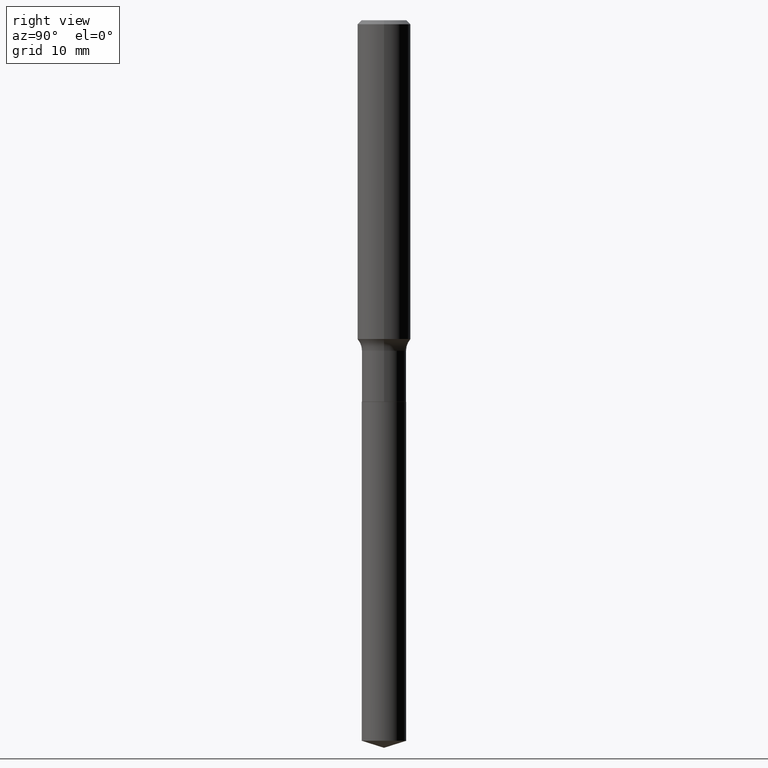
[diagram: clean part render]
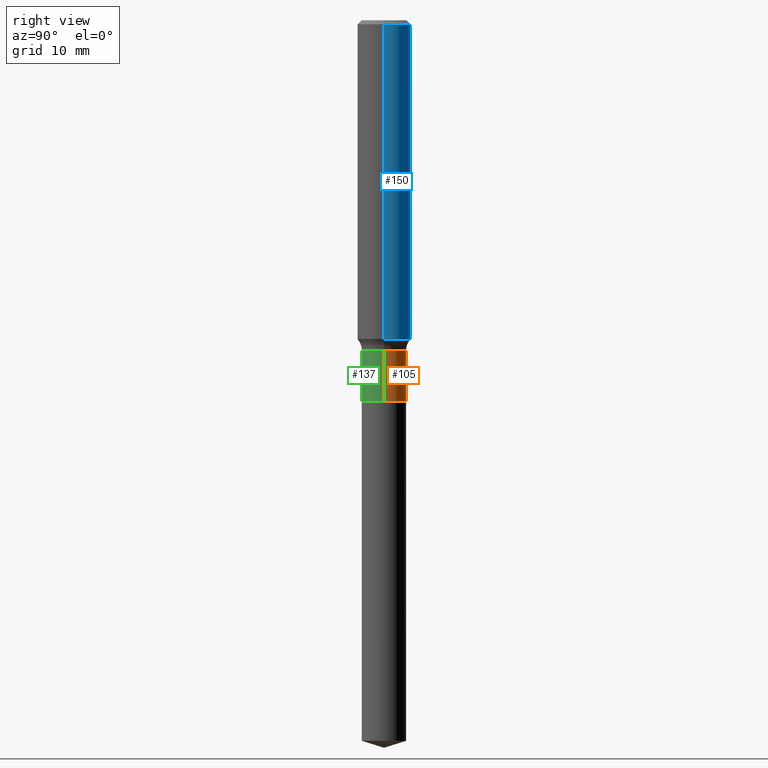
[diagram: same view with three faces highlighted in distinct colors, each labeled with its STEP entity id]
A machine part, right view with three faces highlighted in distinct colors.
Their STEP definitions:

[orange] entity #105 — the highlighted cylindrical surface (edge-blend (fillet) strip) has radius 2.5006 mm, axis along (-0, 0, 1).
#10 = VERTEX_POINT ( 'NONE', #50 ) ;
#19 = DIRECTION ( 'NONE',  ( -2.445468806185136877E-29, 3.491481338843145188E-15, 1.000000000000000000 ) ) ;
#24 = EDGE_CURVE ( 'NONE', #407, #276, #267, .T. ) ;
#33 = CARTESIAN_POINT ( 'NONE',  ( -0.09844999999999995421, -4.815090877279988422E-15, -1.466500000000000137 ) ) ;
#44 = VECTOR ( 'NONE', #75, 39.37007874015748143 ) ;
#50 = CARTESIAN_POINT ( 'NONE',  ( -0.09844999999999999585, -4.815090877279988422E-15, -1.692400000000000126 ) ) ;
#53 = CARTESIAN_POINT ( 'NONE',  ( 0.09844999999999998197, -6.874726756182128559E-16, 4.800596035771097813E-30 ) ) ;
#64 = CARTESIAN_POINT ( 'NONE',  ( 0.09844999999999999585, -6.596455693476352920E-15, -1.692400000000000126 ) ) ;
#75 = DIRECTION ( 'NONE',  ( -2.445468806185136877E-29, 3.491481338843145188E-15, 1.000000000000000000 ) ) ;
#102 = ORIENTED_EDGE ( 'NONE', *, *, #24, .F. ) ;
#105 = ADVANCED_FACE ( 'NONE', ( #110 ), #338, .T. ) ;
#110 = FACE_OUTER_BOUND ( 'NONE', #357, .T. ) ;
#124 = AXIS2_PLACEMENT_3D ( 'NONE', #468, #274, #221 ) ;
#127 = CARTESIAN_POINT ( 'NONE',  ( 4.138711407587726116E-29, -5.908983017858140360E-15, -1.692400000000000126 ) ) ;
#128 = VERTEX_POINT ( 'NONE', #64 ) ;
#161 = ORIENTED_EDGE ( 'NONE', *, *, #336, .T. ) ;
#221 = DIRECTION ( 'NONE',  ( 1.000000000000000000, -6.982962677686266711E-15, 4.876176775795935793E-29 ) ) ;
#242 = ORIENTED_EDGE ( 'NONE', *, *, #456, .F. ) ;
#259 = AXIS2_PLACEMENT_3D ( 'NONE', #127, #353, #474 ) ;
#267 = CIRCLE ( 'NONE', #490, 0.09844999999999995421 ) ;
#272 = EDGE_CURVE ( 'NONE', #10, #276, #467, .T. ) ;
#274 = DIRECTION ( 'NONE',  ( -2.445468806185136597E-29, 3.491481338843145583E-15, 1.000000000000000000 ) ) ;
#276 = VERTEX_POINT ( 'NONE', #33 ) ;
#297 = CARTESIAN_POINT ( 'NONE',  ( 3.586280004270503451E-29, -5.120257383413473493E-15, -1.466500000000000137 ) ) ;
#304 = DIRECTION ( 'NONE',  ( 1.000000000000000000, -6.982962677686269077E-15, 0.000000000000000000 ) ) ;
#334 = ORIENTED_EDGE ( 'NONE', *, *, #272, .T. ) ;
#336 = EDGE_CURVE ( 'NONE', #128, #10, #473, .T. ) ;
#338 = CYLINDRICAL_SURFACE ( 'NONE', #124, 0.09844999999999998197 ) ;
#353 = DIRECTION ( 'NONE',  ( -2.445468806185136597E-29, 3.491481338843145583E-15, 1.000000000000000000 ) ) ;
#357 = EDGE_LOOP ( 'NONE', ( #161, #334, #102, #242 ) ) ;
#403 = LINE ( 'NONE', #53, #446 ) ;
#407 = VERTEX_POINT ( 'NONE', #408 ) ;
#408 = CARTESIAN_POINT ( 'NONE',  ( 0.09844999999999995421, -5.807730059031686053E-15, -1.466500000000000137 ) ) ;
#420 = DIRECTION ( 'NONE',  ( -2.445468806185136597E-29, 3.491481338843145583E-15, 1.000000000000000000 ) ) ;
#446 = VECTOR ( 'NONE', #19, 39.37007874015748143 ) ;
#456 = EDGE_CURVE ( 'NONE', #128, #407, #403, .T. ) ;
#467 = LINE ( 'NONE', #492, #44 ) ;
#468 = CARTESIAN_POINT ( 'NONE',  ( 0.000000000000000000, 0.000000000000000000, 0.000000000000000000 ) ) ;
#473 = CIRCLE ( 'NONE', #259, 0.09844999999999999585 ) ;
#474 = DIRECTION ( 'NONE',  ( 1.000000000000000000, -6.982962677686265922E-15, 0.000000000000000000 ) ) ;
#490 = AXIS2_PLACEMENT_3D ( 'NONE', #297, #420, #304 ) ;
#492 = CARTESIAN_POINT ( 'NONE',  ( -0.09844999999999998197, 6.995293233558185049E-16, -4.842691596355953341E-30 ) ) ;

[blue] entity #150 — the highlighted cylindrical surface (edge-blend (fillet) strip) has radius 2.9997 mm, axis along (-0, 0, 1).
#6 = CARTESIAN_POINT ( 'NONE',  ( 0.000000000000000000, 0.000000000000000000, 0.000000000000000000 ) ) ;
#11 = VECTOR ( 'NONE', #182, 39.37007874015748143 ) ;
#20 = AXIS2_PLACEMENT_3D ( 'NONE', #6, #40, #303 ) ;
#30 = DIRECTION ( 'NONE',  ( -2.445468806185136877E-29, 3.491481338843145188E-15, 1.000000000000000000 ) ) ;
#40 = DIRECTION ( 'NONE',  ( -2.445468806185136597E-29, 3.491481338843145583E-15, 1.000000000000000000 ) ) ;
#43 = AXIS2_PLACEMENT_3D ( 'NONE', #94, #173, #246 ) ;
#54 = ORIENTED_EDGE ( 'NONE', *, *, #469, .F. ) ;
#82 = CARTESIAN_POINT ( 'NONE',  ( 0.1181000000000000799, -8.246878922347486570E-16, 5.758764772215004644E-30 ) ) ;
#91 = DIRECTION ( 'NONE',  ( 1.000000000000000000, -6.982962677686266711E-15, 0.000000000000000000 ) ) ;
#94 = CARTESIAN_POINT ( 'NONE',  ( 3.459698289128462088E-29, -4.939532241821241999E-15, -1.414738262200733399 ) ) ;
#112 = EDGE_CURVE ( 'NONE', #195, #419, #385, .T. ) ;
#119 = CARTESIAN_POINT ( 'NONE',  ( 4.332147990156998495E-31, -6.185159191760672860E-17, -0.01771500000000011607 ) ) ;
#129 = EDGE_CURVE ( 'NONE', #402, #195, #457, .T. ) ;
#130 = EDGE_LOOP ( 'NONE', ( #370, #405, #54, #192 ) ) ;
#150 = ADVANCED_FACE ( 'NONE', ( #393 ), #189, .T. ) ;
#160 = LINE ( 'NONE', #82, #298 ) ;
#171 = EDGE_CURVE ( 'NONE', #402, #477, #160, .T. ) ;
#173 = DIRECTION ( 'NONE',  ( -2.445468806185136597E-29, 3.491481338843145583E-15, 1.000000000000000000 ) ) ;
#182 = DIRECTION ( 'NONE',  ( -2.445468806185136877E-29, 3.491481338843145188E-15, 1.000000000000000000 ) ) ;
#189 = CYLINDRICAL_SURFACE ( 'NONE', #20, 0.1181000000000000799 ) ;
#192 = ORIENTED_EDGE ( 'NONE', *, *, #171, .F. ) ;
#195 = VERTEX_POINT ( 'NONE', #390 ) ;
#238 = AXIS2_PLACEMENT_3D ( 'NONE', #119, #321, #91 ) ;
#246 = DIRECTION ( 'NONE',  ( 1.000000000000000000, -6.982962677686270655E-15, 0.000000000000000000 ) ) ;
#264 = CARTESIAN_POINT ( 'NONE',  ( -0.1181000000000000799, 8.391509709326788873E-16, -5.809262341591047988E-30 ) ) ;
#281 = CARTESIAN_POINT ( 'NONE',  ( -0.1180999999999999966, -1.661540945936744916E-15, -0.01771500000000011607 ) ) ;
#298 = VECTOR ( 'NONE', #30, 39.37007874015748143 ) ;
#303 = DIRECTION ( 'NONE',  ( 1.000000000000000000, -6.982962677686266711E-15, 4.876176775795936353E-29 ) ) ;
#316 = CARTESIAN_POINT ( 'NONE',  ( 0.1181000000000001632, -5.764220134055991839E-15, -1.414738262200733399 ) ) ;
#321 = DIRECTION ( 'NONE',  ( -2.445468806185136597E-29, 3.491481338843145583E-15, 1.000000000000000000 ) ) ;
#363 = CARTESIAN_POINT ( 'NONE',  ( 0.1180999999999999966, -8.865394841523548556E-16, -0.01771500000000011607 ) ) ;
#370 = ORIENTED_EDGE ( 'NONE', *, *, #129, .T. ) ;
#385 = LINE ( 'NONE', #264, #11 ) ;
#390 = CARTESIAN_POINT ( 'NONE',  ( -0.1181000000000001632, -4.100381270888563013E-15, -1.414738262200733399 ) ) ;
#393 = FACE_OUTER_BOUND ( 'NONE', #130, .T. ) ;
#402 = VERTEX_POINT ( 'NONE', #316 ) ;
#405 = ORIENTED_EDGE ( 'NONE', *, *, #112, .T. ) ;
#419 = VERTEX_POINT ( 'NONE', #281 ) ;
#457 = CIRCLE ( 'NONE', #43, 0.1181000000000001632 ) ;
#469 = EDGE_CURVE ( 'NONE', #477, #419, #491, .T. ) ;
#477 = VERTEX_POINT ( 'NONE', #363 ) ;
#491 = CIRCLE ( 'NONE', #238, 0.1180999999999999966 ) ;

[green] entity #137 — the highlighted cylindrical surface (edge-blend (fillet) strip) has radius 2.5006 mm, axis along (-0, 0, 1).
#10 = VERTEX_POINT ( 'NONE', #50 ) ;
#19 = DIRECTION ( 'NONE',  ( -2.445468806185136877E-29, 3.491481338843145188E-15, 1.000000000000000000 ) ) ;
#33 = CARTESIAN_POINT ( 'NONE',  ( -0.09844999999999995421, -4.815090877279988422E-15, -1.466500000000000137 ) ) ;
#44 = VECTOR ( 'NONE', #75, 39.37007874015748143 ) ;
#48 = EDGE_CURVE ( 'NONE', #276, #407, #51, .T. ) ;
#50 = CARTESIAN_POINT ( 'NONE',  ( -0.09844999999999999585, -4.815090877279988422E-15, -1.692400000000000126 ) ) ;
#51 = CIRCLE ( 'NONE', #258, 0.09844999999999995421 ) ;
#53 = CARTESIAN_POINT ( 'NONE',  ( 0.09844999999999998197, -6.874726756182128559E-16, 4.800596035771097813E-30 ) ) ;
#64 = CARTESIAN_POINT ( 'NONE',  ( 0.09844999999999999585, -6.596455693476352920E-15, -1.692400000000000126 ) ) ;
#75 = DIRECTION ( 'NONE',  ( -2.445468806185136877E-29, 3.491481338843145188E-15, 1.000000000000000000 ) ) ;
#107 = CYLINDRICAL_SURFACE ( 'NONE', #293, 0.09844999999999998197 ) ;
#128 = VERTEX_POINT ( 'NONE', #64 ) ;
#137 = ADVANCED_FACE ( 'NONE', ( #219 ), #107, .T. ) ;
#138 = DIRECTION ( 'NONE',  ( 1.000000000000000000, -6.982962677686266711E-15, 4.876176775795935793E-29 ) ) ;
#142 = ORIENTED_EDGE ( 'NONE', *, *, #48, .F. ) ;
#147 = CIRCLE ( 'NONE', #332, 0.09844999999999999585 ) ;
#168 = ORIENTED_EDGE ( 'NONE', *, *, #456, .T. ) ;
#219 = FACE_OUTER_BOUND ( 'NONE', #286, .T. ) ;
#252 = DIRECTION ( 'NONE',  ( -2.445468806185136597E-29, 3.491481338843145583E-15, 1.000000000000000000 ) ) ;
#258 = AXIS2_PLACEMENT_3D ( 'NONE', #266, #346, #310 ) ;
#261 = CARTESIAN_POINT ( 'NONE',  ( 0.000000000000000000, 0.000000000000000000, 0.000000000000000000 ) ) ;
#266 = CARTESIAN_POINT ( 'NONE',  ( 3.586280004270503451E-29, -5.120257383413473493E-15, -1.466500000000000137 ) ) ;
#272 = EDGE_CURVE ( 'NONE', #10, #276, #467, .T. ) ;
#276 = VERTEX_POINT ( 'NONE', #33 ) ;
#284 = DIRECTION ( 'NONE',  ( 1.000000000000000000, -6.982962677686265922E-15, 0.000000000000000000 ) ) ;
#286 = EDGE_LOOP ( 'NONE', ( #448, #394, #168, #142 ) ) ;
#293 = AXIS2_PLACEMENT_3D ( 'NONE', #261, #252, #138 ) ;
#310 = DIRECTION ( 'NONE',  ( 1.000000000000000000, -6.982962677686269077E-15, 0.000000000000000000 ) ) ;
#315 = DIRECTION ( 'NONE',  ( -2.445468806185136597E-29, 3.491481338843145583E-15, 1.000000000000000000 ) ) ;
#332 = AXIS2_PLACEMENT_3D ( 'NONE', #356, #315, #284 ) ;
#346 = DIRECTION ( 'NONE',  ( -2.445468806185136597E-29, 3.491481338843145583E-15, 1.000000000000000000 ) ) ;
#356 = CARTESIAN_POINT ( 'NONE',  ( 4.138711407587726116E-29, -5.908983017858140360E-15, -1.692400000000000126 ) ) ;
#375 = EDGE_CURVE ( 'NONE', #10, #128, #147, .T. ) ;
#394 = ORIENTED_EDGE ( 'NONE', *, *, #375, .T. ) ;
#403 = LINE ( 'NONE', #53, #446 ) ;
#407 = VERTEX_POINT ( 'NONE', #408 ) ;
#408 = CARTESIAN_POINT ( 'NONE',  ( 0.09844999999999995421, -5.807730059031686053E-15, -1.466500000000000137 ) ) ;
#446 = VECTOR ( 'NONE', #19, 39.37007874015748143 ) ;
#448 = ORIENTED_EDGE ( 'NONE', *, *, #272, .F. ) ;
#456 = EDGE_CURVE ( 'NONE', #128, #407, #403, .T. ) ;
#467 = LINE ( 'NONE', #492, #44 ) ;
#492 = CARTESIAN_POINT ( 'NONE',  ( -0.09844999999999998197, 6.995293233558185049E-16, -4.842691596355953341E-30 ) ) ;